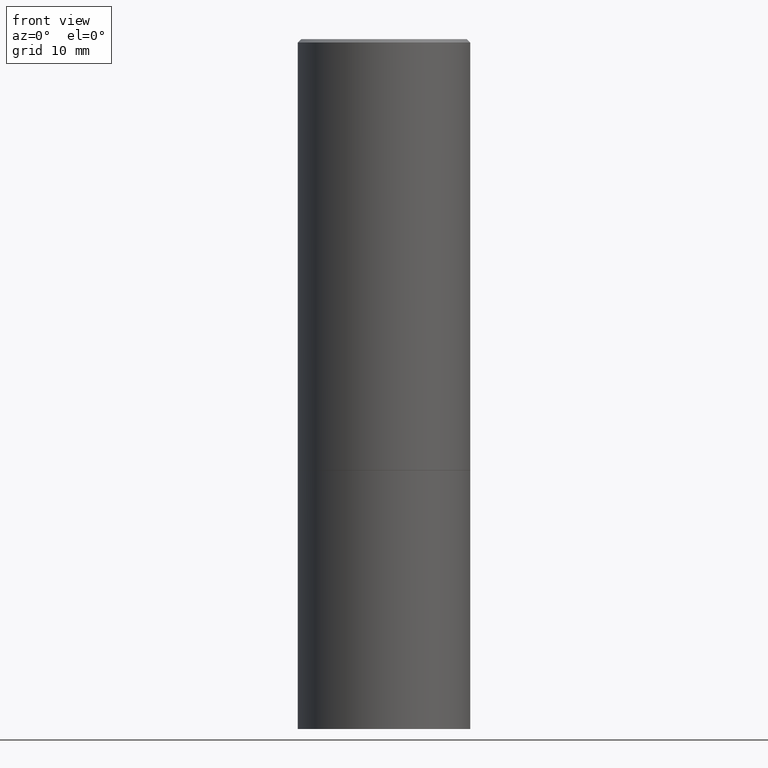
[diagram: clean part render]
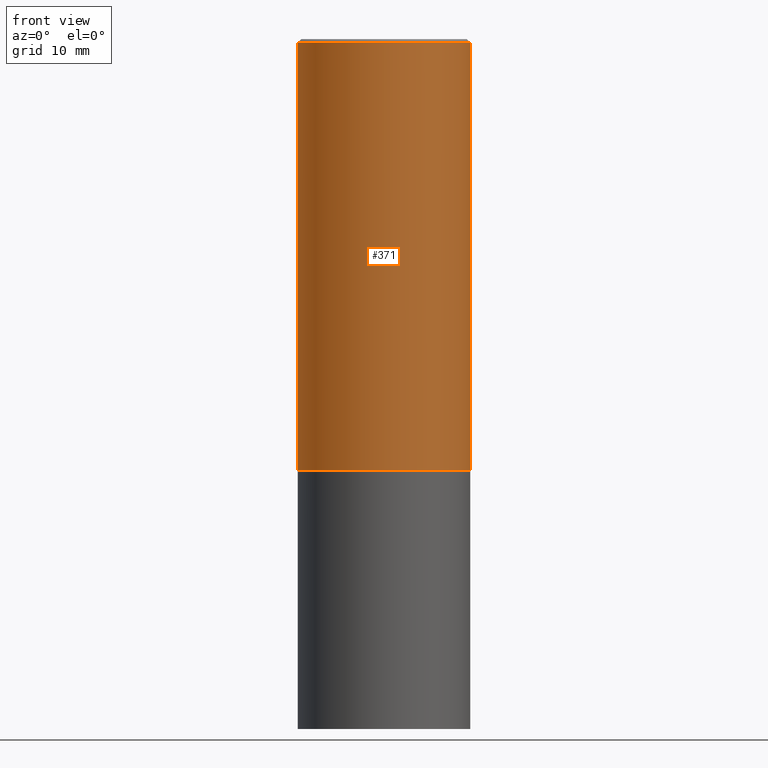
[diagram: same view with one face highlighted and labeled with its STEP entity id]
A machine part, front view. The second image highlights one B-rep face of the part: STEP entity #371.
In plain terms, the highlighted cylindrical surface (partial cylindrical patch) has radius 12.7 mm, axis along (-0, 0, 1).
Its self-contained STEP definition (entity closure, byte-faithful):
#1 = DIRECTION ( 'NONE',  ( -2.445468806185136597E-29, 3.491481338843145583E-15, 1.000000000000000000 ) ) ;
#10 = CARTESIAN_POINT ( 'NONE',  ( -0.5000000000000001110, -8.448070674724403070E-16, -2.499000000000000110 ) ) ;
#18 = CIRCLE ( 'NONE', #380, 0.5000000000000001110 ) ;
#25 = CARTESIAN_POINT ( 'NONE',  ( -0.4999999999999999445, 3.552713678800500535E-15, -2.459467545127452611E-29 ) ) ;
#28 = EDGE_CURVE ( 'NONE', #50, #108, #143, .T. ) ;
#37 = CARTESIAN_POINT ( 'NONE',  ( -0.4999999999999997780, 3.421651712066268479E-15, -0.02000000000000011491 ) ) ;
#42 = EDGE_CURVE ( 'NONE', #108, #313, #175, .T. ) ;
#50 = VERTEX_POINT ( 'NONE', #10 ) ;
#59 = EDGE_LOOP ( 'NONE', ( #215, #283, #198, #63 ) ) ;
#63 = ORIENTED_EDGE ( 'NONE', *, *, #42, .F. ) ;
#108 = VERTEX_POINT ( 'NONE', #37 ) ;
#111 = DIRECTION ( 'NONE',  ( 1.000000000000000000, -6.982962677686267499E-15, 0.000000000000000000 ) ) ;
#113 = DIRECTION ( 'NONE',  ( 1.000000000000000000, -6.982962677686266711E-15, 0.000000000000000000 ) ) ;
#114 = DIRECTION ( 'NONE',  ( 1.000000000000000000, -6.982962677686266711E-15, 4.876176775795935793E-29 ) ) ;
#117 = DIRECTION ( 'NONE',  ( -2.445468806185136877E-29, 3.491481338843145188E-15, 1.000000000000000000 ) ) ;
#125 = VERTEX_POINT ( 'NONE', #320 ) ;
#143 = LINE ( 'NONE', #25, #181 ) ;
#154 = EDGE_CURVE ( 'NONE', #50, #125, #18, .T. ) ;
#158 = CARTESIAN_POINT ( 'NONE',  ( 0.4999999999999999445, -3.491481338843132961E-15, 2.438088387897967616E-29 ) ) ;
#175 = CIRCLE ( 'NONE', #217, 0.4999999999999997780 ) ;
#181 = VECTOR ( 'NONE', #117, 39.37007874015748143 ) ;
#198 = ORIENTED_EDGE ( 'NONE', *, *, #205, .T. ) ;
#201 = CARTESIAN_POINT ( 'NONE',  ( 0.4999999999999997780, -3.500078625662627896E-15, -0.02000000000000011491 ) ) ;
#205 = EDGE_CURVE ( 'NONE', #125, #313, #315, .T. ) ;
#215 = ORIENTED_EDGE ( 'NONE', *, *, #28, .F. ) ;
#217 = AXIS2_PLACEMENT_3D ( 'NONE', #274, #247, #113 ) ;
#218 = DIRECTION ( 'NONE',  ( -2.445468806185136597E-29, 3.491481338843145583E-15, 1.000000000000000000 ) ) ;
#230 = VECTOR ( 'NONE', #253, 39.37007874015748143 ) ;
#238 = FACE_OUTER_BOUND ( 'NONE', #59, .T. ) ;
#247 = DIRECTION ( 'NONE',  ( -2.445468806185136597E-29, 3.491481338843145583E-15, 1.000000000000000000 ) ) ;
#250 = AXIS2_PLACEMENT_3D ( 'NONE', #335, #218, #114 ) ;
#253 = DIRECTION ( 'NONE',  ( -2.445468806185136877E-29, 3.491481338843145188E-15, 1.000000000000000000 ) ) ;
#272 = CYLINDRICAL_SURFACE ( 'NONE', #250, 0.4999999999999999445 ) ;
#274 = CARTESIAN_POINT ( 'NONE',  ( 4.890937612370302060E-31, -6.982962677686331052E-17, -0.02000000000000011491 ) ) ;
#283 = ORIENTED_EDGE ( 'NONE', *, *, #154, .T. ) ;
#313 = VERTEX_POINT ( 'NONE', #201 ) ;
#315 = LINE ( 'NONE', #158, #230 ) ;
#320 = CARTESIAN_POINT ( 'NONE',  ( 0.5000000000000001110, -1.221669320461215687E-14, -2.499000000000000110 ) ) ;
#328 = CARTESIAN_POINT ( 'NONE',  ( 6.111226546656657010E-29, -8.725211865769021935E-15, -2.499000000000000110 ) ) ;
#335 = CARTESIAN_POINT ( 'NONE',  ( 0.000000000000000000, 0.000000000000000000, 0.000000000000000000 ) ) ;
#371 = ADVANCED_FACE ( 'NONE', ( #238 ), #272, .T. ) ;
#380 = AXIS2_PLACEMENT_3D ( 'NONE', #328, #1, #111 ) ;